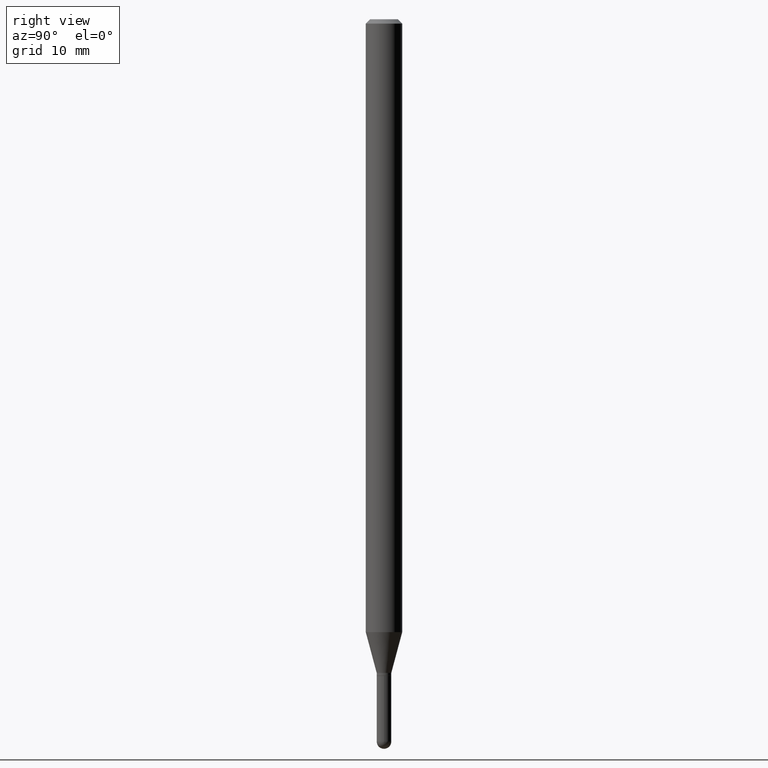
[diagram: clean part render]
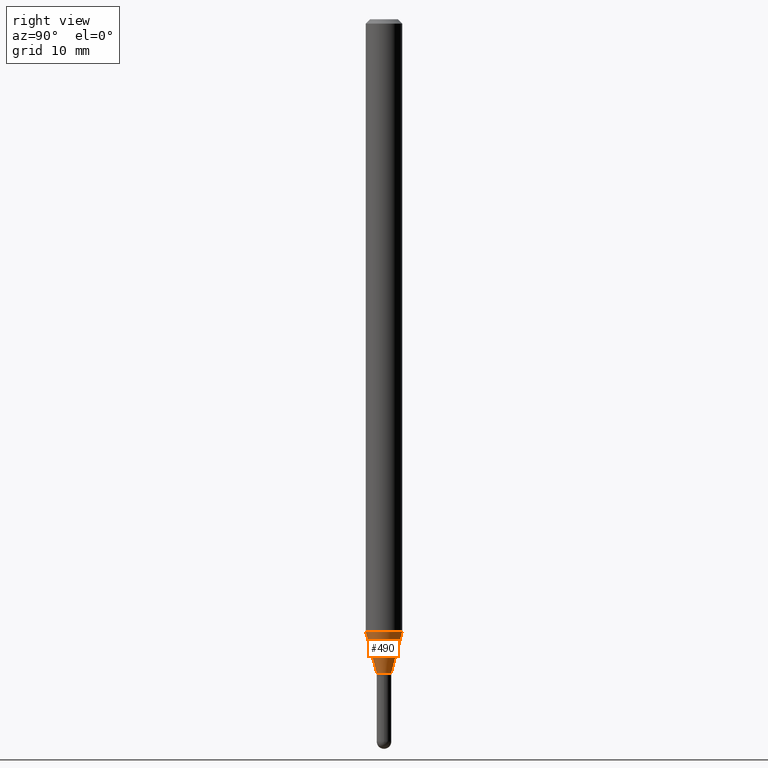
[diagram: same view with one face highlighted and labeled with its STEP entity id]
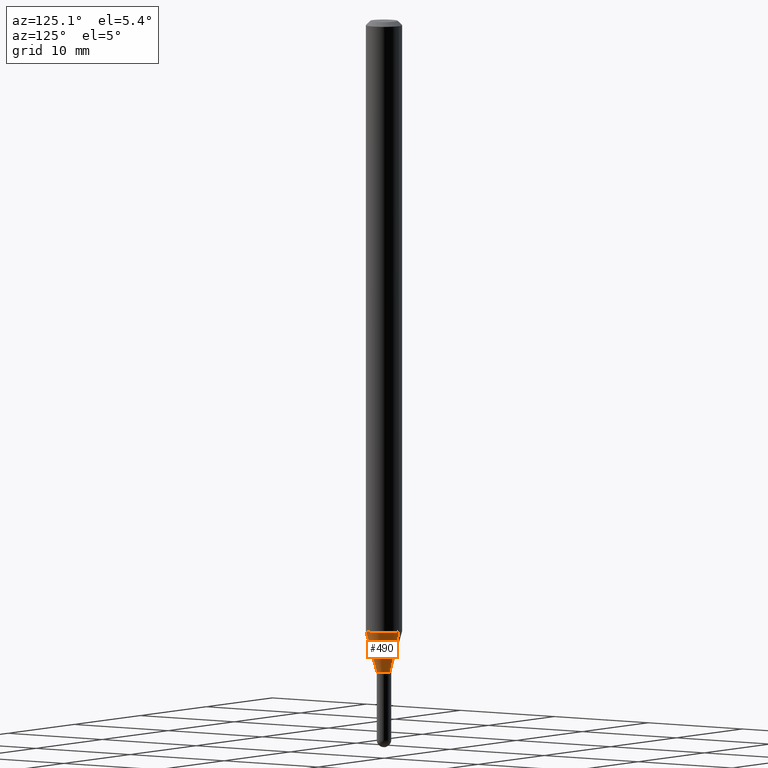
[diagram: same view with one face highlighted and labeled with its STEP entity id]
A machine part, right view. The second image highlights one B-rep face of the part: STEP entity #490.
A second angle (auxiliary view) of the same face is appended — the face is thin or edge-on in the first view.
In plain terms, the highlighted conical surface has half-angle 15 deg.
Its self-contained STEP definition (entity closure, byte-faithful):
#12 = DIRECTION ( 'NONE',  ( -6.982962677686266711E-15, -1.000000000000000000, 0.000000000000000000 ) ) ;
#30 = CONICAL_SURFACE ( 'NONE', #374, 0.02500000000000020262, 0.2617993877991501295 ) ;
#33 = LINE ( 'NONE', #327, #194 ) ;
#37 = EDGE_CURVE ( 'NONE', #504, #106, #283, .T. ) ;
#44 = EDGE_CURVE ( 'NONE', #198, #504, #148, .T. ) ;
#47 = AXIS2_PLACEMENT_3D ( 'NONE', #301, #453, #100 ) ;
#52 = CARTESIAN_POINT ( 'NONE',  ( 1.776356839400812380E-16, 0.02499999999999238248, -2.240000000000000213 ) ) ;
#55 = ORIENTED_EDGE ( 'NONE', *, *, #44, .T. ) ;
#76 = DIRECTION ( 'NONE',  ( -2.445439721042902247E-29, 3.491522990422248684E-15, 1.000000000000000000 ) ) ;
#88 = VERTEX_POINT ( 'NONE', #466 ) ;
#100 = DIRECTION ( 'NONE',  ( -6.982962677686266711E-15, -1.000000000000000000, 0.000000000000000000 ) ) ;
#106 = VERTEX_POINT ( 'NONE', #308 ) ;
#113 = ORIENTED_EDGE ( 'NONE', *, *, #37, .T. ) ;
#143 = CARTESIAN_POINT ( 'NONE',  ( 3.108624468950976514E-16, 0.02499999999999238595, -2.240000000000000213 ) ) ;
#148 = CIRCLE ( 'NONE', #47, 0.02500000000000020262 ) ;
#151 = EDGE_CURVE ( 'NONE', #88, #106, #430, .T. ) ;
#152 = ORIENTED_EDGE ( 'NONE', *, *, #197, .F. ) ;
#167 = VECTOR ( 'NONE', #362, 39.37007874015747433 ) ;
#194 = VECTOR ( 'NONE', #203, 39.37007874015749564 ) ;
#197 = EDGE_CURVE ( 'NONE', #198, #88, #33, .T. ) ;
#198 = VERTEX_POINT ( 'NONE', #276 ) ;
#203 = DIRECTION ( 'NONE',  ( -1.807323732225328562E-15, -0.2588190451025179639, 0.9659258262890689783 ) ) ;
#218 = ORIENTED_EDGE ( 'NONE', *, *, #151, .F. ) ;
#228 = CARTESIAN_POINT ( 'NONE',  ( 5.135541026919384969E-29, -7.332366203693942518E-15, -2.100048094716168379 ) ) ;
#232 = AXIS2_PLACEMENT_3D ( 'NONE', #228, #76, #389 ) ;
#257 = DIRECTION ( 'NONE',  ( -2.445439721042902247E-29, 3.491522990422248684E-15, 1.000000000000000000 ) ) ;
#276 = CARTESIAN_POINT ( 'NONE',  ( -1.745740669421032964E-16, -0.02500000000000802275, -2.240000000000000213 ) ) ;
#283 = LINE ( 'NONE', #52, #167 ) ;
#301 = CARTESIAN_POINT ( 'NONE',  ( 5.477784975136101303E-29, -7.821011498545836863E-15, -2.240000000000000213 ) ) ;
#308 = CARTESIAN_POINT ( 'NONE',  ( 4.440892098501137935E-16, 0.06249999999999265171, -2.100048094716168823 ) ) ;
#327 = CARTESIAN_POINT ( 'NONE',  ( -1.745740669421032964E-16, -0.02500000000000802275, -2.240000000000000213 ) ) ;
#362 = DIRECTION ( 'NONE',  ( 1.839019923739599526E-15, 0.2588190451025248473, 0.9659258262890673130 ) ) ;
#374 = AXIS2_PLACEMENT_3D ( 'NONE', #484, #257, #12 ) ;
#389 = DIRECTION ( 'NONE',  ( -6.982962677686265922E-15, -1.000000000000000000, 4.370956789862821150E-15 ) ) ;
#401 = EDGE_LOOP ( 'NONE', ( #55, #113, #218, #152 ) ) ;
#430 = CIRCLE ( 'NONE', #232, 0.06250000000000000000 ) ;
#453 = DIRECTION ( 'NONE',  ( -2.445439721042902247E-29, 3.491522990422248684E-15, 1.000000000000000000 ) ) ;
#466 = CARTESIAN_POINT ( 'NONE',  ( -4.364351673553404428E-16, -0.06250000000000735523, -2.100048094716167935 ) ) ;
#484 = CARTESIAN_POINT ( 'NONE',  ( 5.477784975136101303E-29, -7.821011498545836863E-15, -2.240000000000000213 ) ) ;
#487 = FACE_OUTER_BOUND ( 'NONE', #401, .T. ) ;
#490 = ADVANCED_FACE ( 'NONE', ( #487 ), #30, .T. ) ;
#504 = VERTEX_POINT ( 'NONE', #143 ) ;